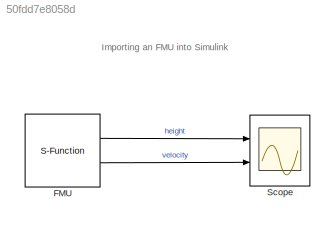
MODEL slx_50fdd7e8058d
KIND model
CONFIG PreLoadFcn = h = 1;\nv = 0;\ne = 0.7;
BLOCK [S-Function] FMU
  CloseFcn = FMIKit.closeBlockDialog(gcbh)
  DeleteFcn = FMIKit.closeBlockDialog(gcbh)
  DestroyFcn = FMIKit.closeBlockDialog(gcbh)
  EnableBusSupport = off
  FunctionName = sfun_fmurun
  LoadFcn = FMIKit.setSFunctionParameters(gcb)
  ModelCloseFcn = FMIKit.closeBlockDialog(gcbh)
  OpenFcn = FMIKit.showBlockDialog(gcbh);
  Parameters = 2.0 0 '{8c4e810f-3df3-4a00-8276-176fa3c9f003}' 'BouncingBall' FMIKit.getUnzipDirectory(gcb) 0 0 0 '' FMIKit.getSolverRelativeTolerance(bdroot(gcb)) -1 0 2 1 0 [] [] [] [] [1 1] [2 2] [0 1]
  ParentCloseFcn = FMIKit.closeBlockDialog(gcbh)
  Ports = [0, 2]
  UserDataPersistent = on
BLOCK [Scope] Scope
  DataFormat = StructureWithTime
  Floating = off
  NumInputPorts = 2
  Ports = [2]
  SampleTime = 0
  ShowLegends = off
  TimeRange = 3
  YMax = 1~4
  YMin = 0~-6
ANNOTATION (root): Importing an FMU into Simulink
LINE FMU:1 -> Scope:1
LINE FMU:2 -> Scope:2
